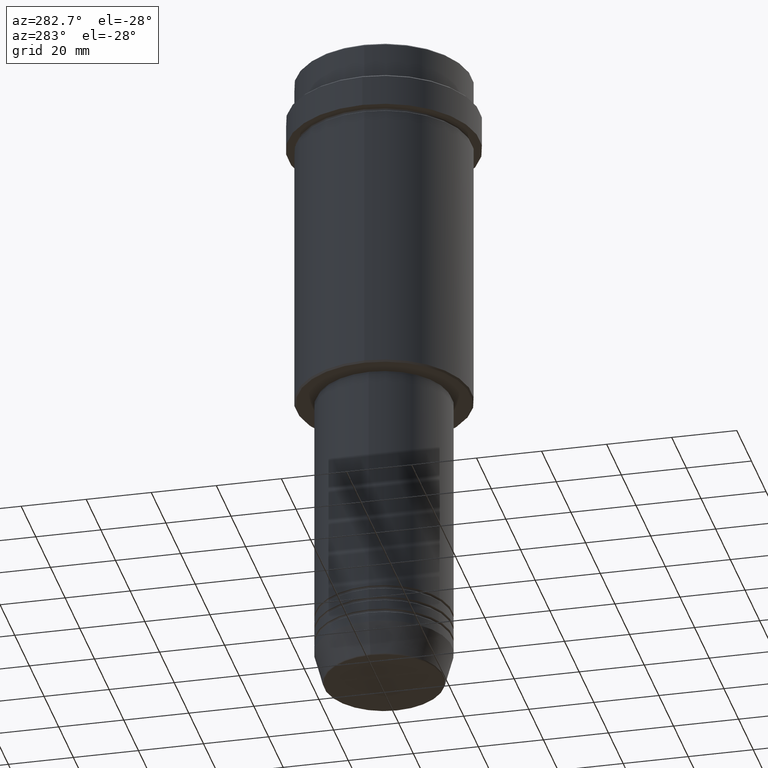
[diagram: clean part render]
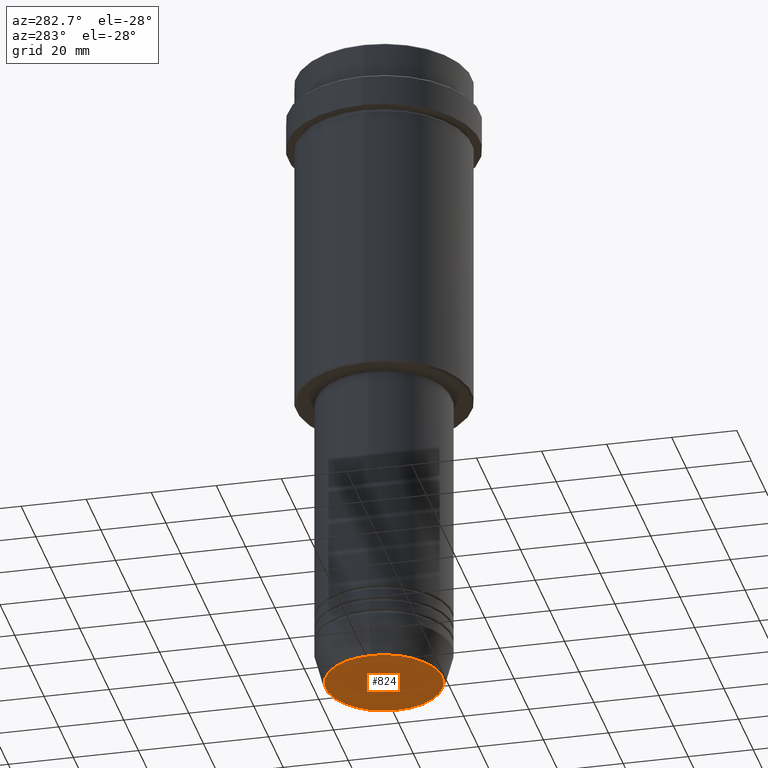
[diagram: same view with one face highlighted and labeled with its STEP entity id]
A machine part, auxiliary view. The second image highlights one B-rep face of the part: STEP entity #824.
In plain terms, the highlighted planar face has unit normal (0, -0, 1).
Its self-contained STEP definition (entity closure, byte-faithful):
#191 = ORIENTED_EDGE ( 'NONE', *, *, #944, .T. ) ;
#232 = CIRCLE ( 'NONE', #1370, 17.93684458169929030 ) ;
#286 = DIRECTION ( 'NONE',  ( 1.000000000000000000, 0.000000000000000000, 0.000000000000000000 ) ) ;
#303 = CARTESIAN_POINT ( 'NONE',  ( 0.000000000000000000, 0.000000000000000000, -203.0000000000000000 ) ) ;
#332 = VERTEX_POINT ( 'NONE', #1158 ) ;
#358 = DIRECTION ( 'NONE',  ( 1.000000000000000000, 0.000000000000000000, 0.000000000000000000 ) ) ;
#392 = ORIENTED_EDGE ( 'NONE', *, *, #711, .T. ) ;
#480 = AXIS2_PLACEMENT_3D ( 'NONE', #1291, #949, #1192 ) ;
#490 = VERTEX_POINT ( 'NONE', #1400 ) ;
#518 = PLANE ( 'NONE',  #480 ) ;
#534 = FACE_OUTER_BOUND ( 'NONE', #719, .T. ) ;
#641 = DIRECTION ( 'NONE',  ( 0.000000000000000000, 0.000000000000000000, -1.000000000000000000 ) ) ;
#711 = EDGE_CURVE ( 'NONE', #332, #490, #232, .T. ) ;
#719 = EDGE_LOOP ( 'NONE', ( #392, #191 ) ) ;
#824 = ADVANCED_FACE ( 'NONE', ( #534 ), #518, .F. ) ;
#915 = DIRECTION ( 'NONE',  ( 0.000000000000000000, 0.000000000000000000, -1.000000000000000000 ) ) ;
#944 = EDGE_CURVE ( 'NONE', #490, #332, #1093, .T. ) ;
#949 = DIRECTION ( 'NONE',  ( 0.000000000000000000, -0.000000000000000000, 1.000000000000000000 ) ) ;
#1056 = CARTESIAN_POINT ( 'NONE',  ( 0.000000000000000000, 0.000000000000000000, -203.0000000000000000 ) ) ;
#1093 = CIRCLE ( 'NONE', #1372, 17.93684458169929030 ) ;
#1158 = CARTESIAN_POINT ( 'NONE',  ( 17.93684458169929030, 0.000000000000000000, -203.0000000000000000 ) ) ;
#1192 = DIRECTION ( 'NONE',  ( 1.000000000000000000, 0.000000000000000000, 0.000000000000000000 ) ) ;
#1291 = CARTESIAN_POINT ( 'NONE',  ( 0.000000000000000000, 0.000000000000000000, -203.0000000000000000 ) ) ;
#1370 = AXIS2_PLACEMENT_3D ( 'NONE', #1056, #915, #286 ) ;
#1372 = AXIS2_PLACEMENT_3D ( 'NONE', #303, #641, #358 ) ;
#1400 = CARTESIAN_POINT ( 'NONE',  ( -17.93684458169929030, 2.226202879662624346E-15, -203.0000000000000000 ) ) ;